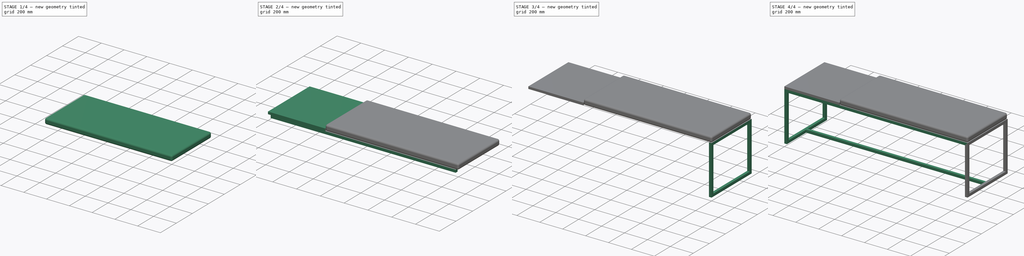
[diagram: build sequence overview — one tinted view per stage of 4, left to right]
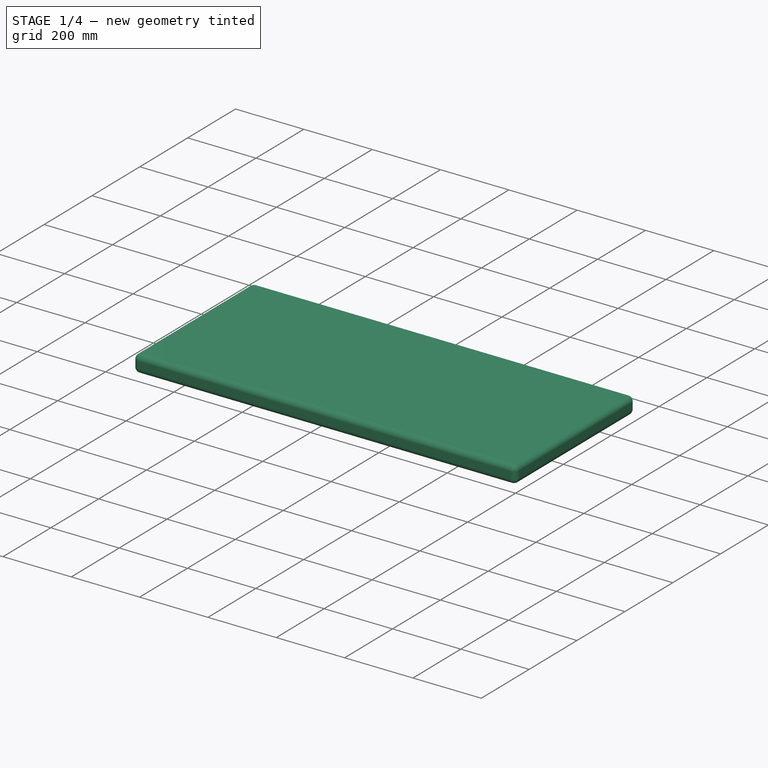
[diagram: stage 1 of 4 — iso view after this stage's code; geometry added in this stage tinted green]
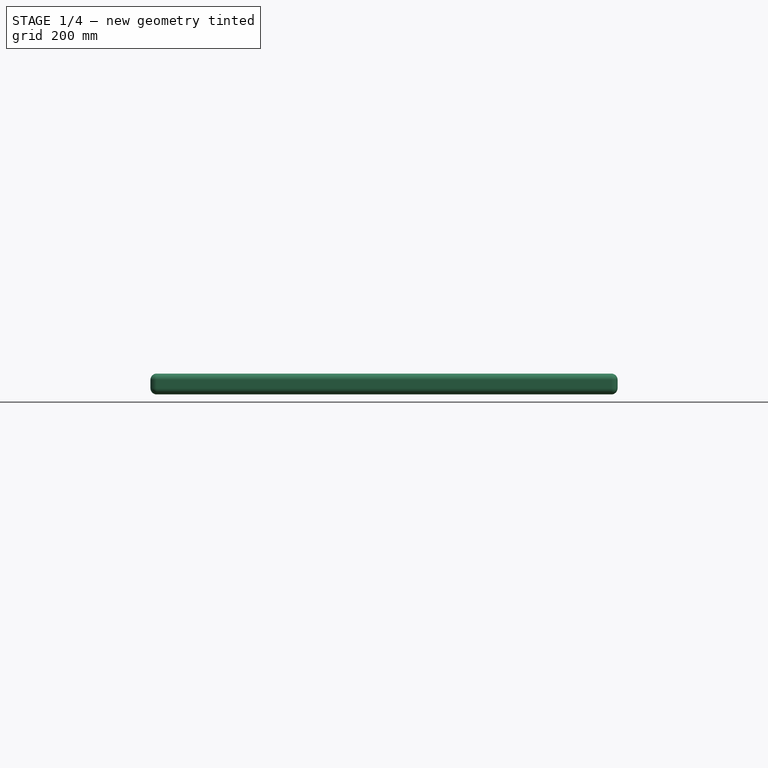
[diagram: stage 1 of 4 — front view after this stage's code; geometry added in this stage tinted green]
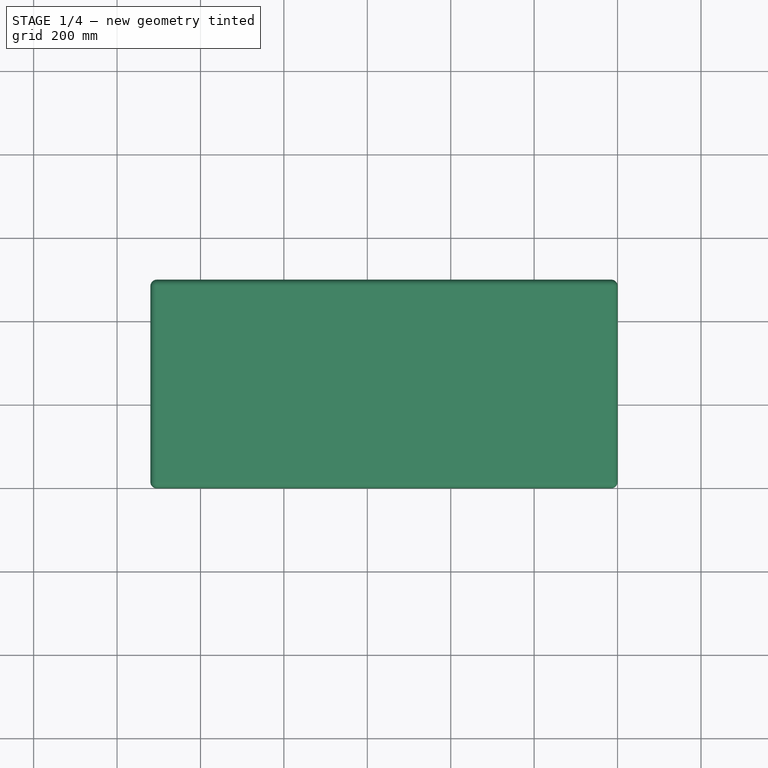
[diagram: stage 1 of 4 — top view after this stage's code; geometry added in this stage tinted green]
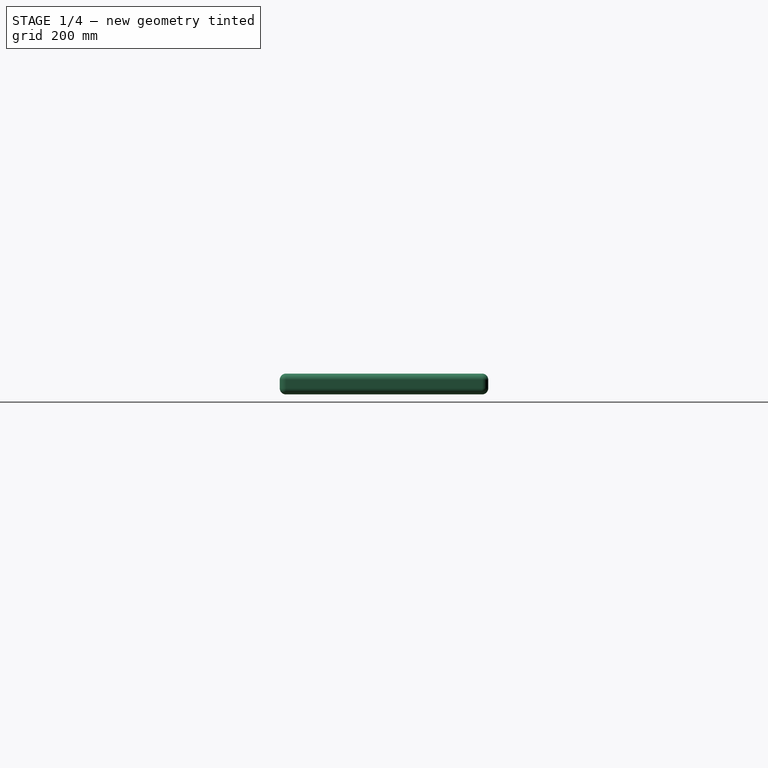
[diagram: stage 1 of 4 — right view after this stage's code; geometry added in this stage tinted green]
FCSTD DOCUMENT  (FreeCAD 0.21R33668 +26 (Git))
Label: Reacamier
License: All rights reserved
objects: Sketcher::SketchObject×4, Part::FeaturePython×4, Part::Extrusion×4, Part::MultiFuse×1, Part::Fillet×1, Part::Compound×1
note: 15 computed .brp shape members not serialized (recipe doc carries the construction recipe); baked Part::Feature solids carry a one-line shape summary decoded from their .brp

FEATURE [Sketcher::SketchObject] Sketch003
  FullyConstrained = true
  expr: Constraints[10] = <<Propriedades recamier>>.Largura
  expr: Constraints[9] = <<Propriedades recamier>>.Comprimento * 0.7
  sketch-geometry (4):
    g0: LineSegment StartX=0 StartY=0 StartZ=0 EndX=1120 EndY=0 EndZ=0
    g1: LineSegment StartX=1120 StartY=0 StartZ=0 EndX=1120 EndY=500 EndZ=0
    g2: LineSegment StartX=1120 StartY=500 StartZ=0 EndX=0 EndY=500 EndZ=0
    g3: LineSegment StartX=0 StartY=500 StartZ=0 EndX=0 EndY=0 EndZ=0
  constraints (11):
    c: Coincident(g0,g1)
    c: Coincident(g1,g2)
    c: Coincident(g2,g3)
    c: Coincident(g3,g0)
    c: Horizontal(g0)
    c: Horizontal(g2)
    c: Vertical(g1)
    c: Vertical(g3)
    c: Coincident(g0,g-1)
    c: DistanceX(g2,g2) = 1120
    c: DistanceY(g1,g1) = 500
FEATURE [Part::Extrusion] Extrude003  label="Extrude006"
  Base = -> Sketch003
  Dir = (0,0,1)
  DirMode = 2
  FaceMakerClass = Part::FaceMakerBullseye
  LengthFwd = 50
  LengthRev = 0
  Solid = true
  Symmetric = false
FEATURE [Part::Fillet] Fillet
  Base = -> Extrude003
  Edges = 12 edges r=15: [Edge1,Edge2,Edge3,Edge4,Edge5,Edge6,Edge7,Edge8,Edge9,Edge10,Edge11,Edge12]
  Placement = pos=(480,0,430) rot=(0,0,1;0rad)
  expr: .Placement.Base.x = <<Propriedades recamier>>.Comprimento * 0.3
  expr: .Placement.Base.z = <<Propriedades recamier>>.Altura - 2 cm
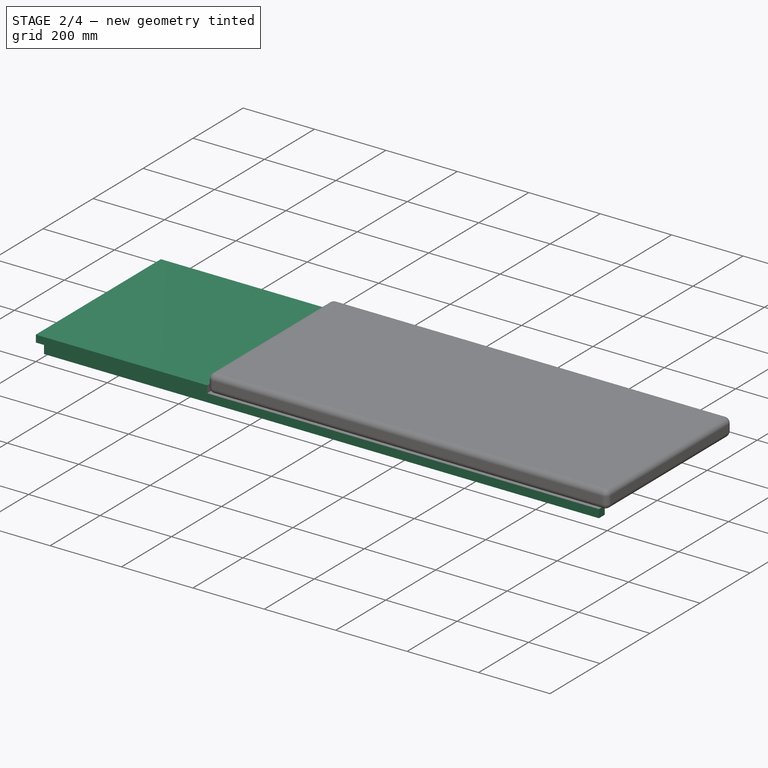
[diagram: stage 2 of 4 — iso view after this stage's code; geometry added in this stage tinted green]
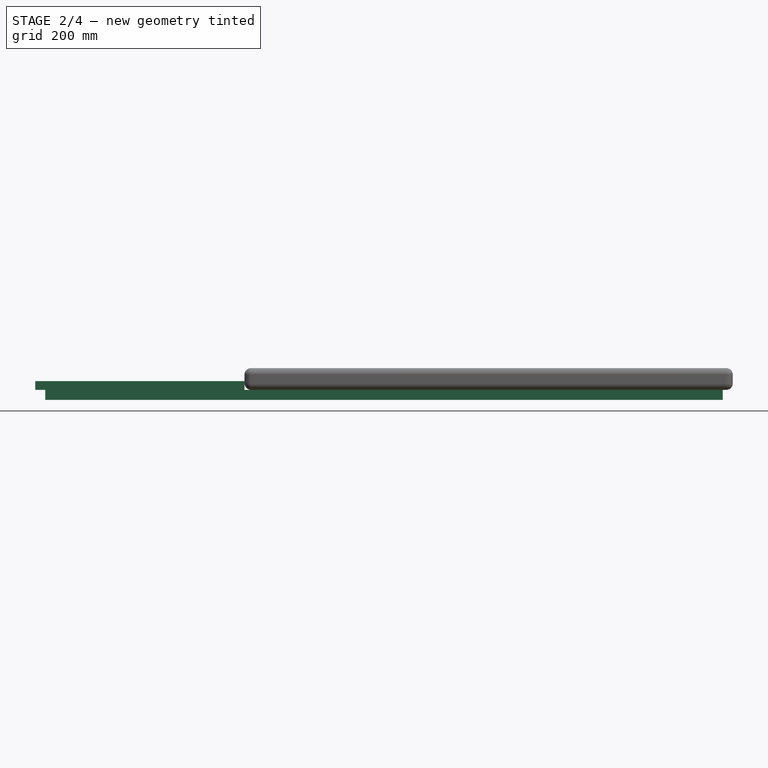
[diagram: stage 2 of 4 — front view after this stage's code; geometry added in this stage tinted green]
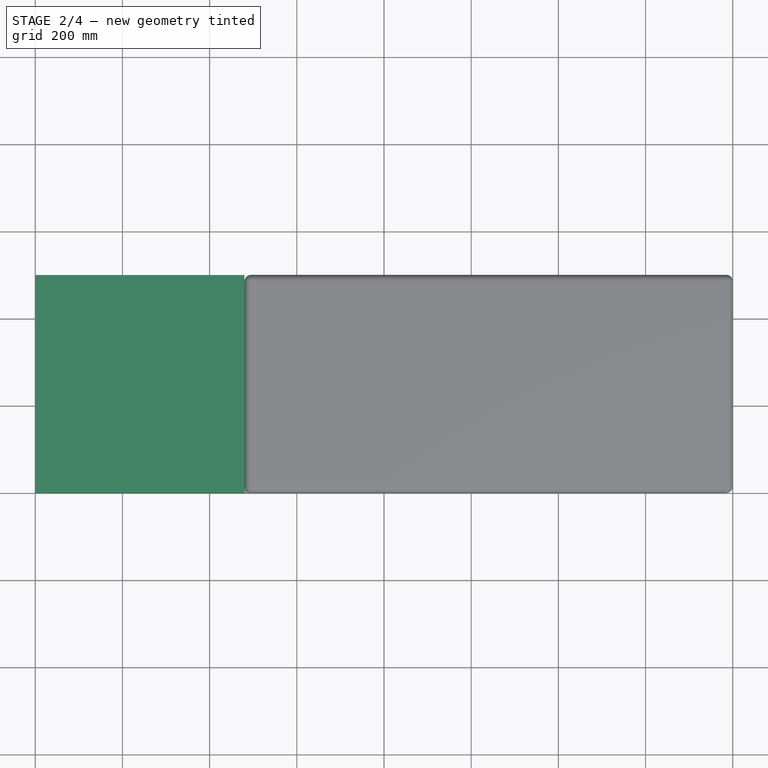
[diagram: stage 2 of 4 — top view after this stage's code; geometry added in this stage tinted green]
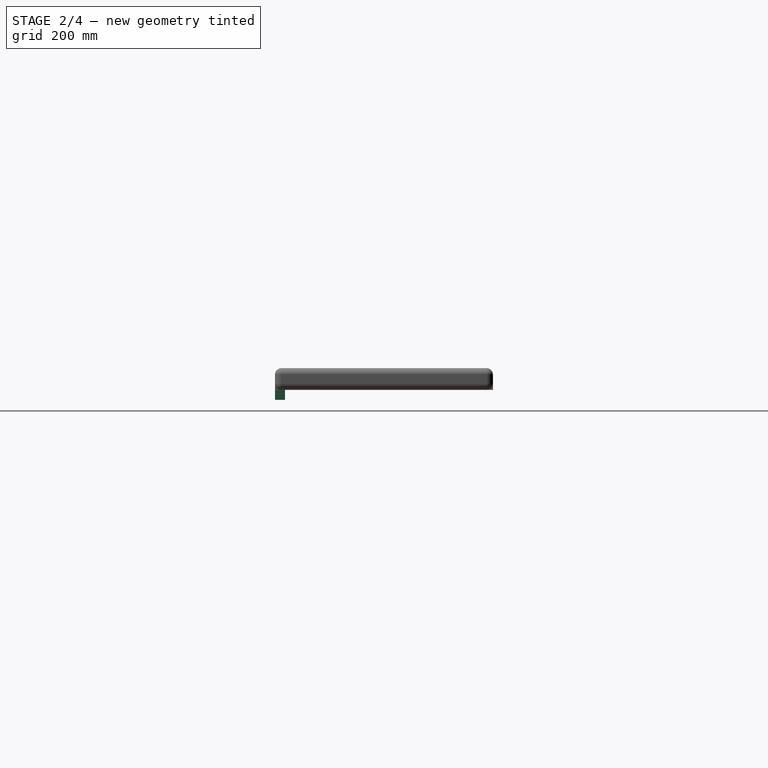
[diagram: stage 2 of 4 — right view after this stage's code; geometry added in this stage tinted green]
FEATURE [Sketcher::SketchObject] Sketch001
  FullyConstrained = true
  Placement = pos=(0,0,0) rot=(0.57735,0.57735,0.57735;2.0944rad)
  expr: Constraints[10] = <<Propriedades recamier>>.EspessuraFrame
  sketch-geometry (4):
    g0: LineSegment StartX=0 StartY=0 StartZ=0 EndX=23 EndY=0 EndZ=0
    g1: LineSegment StartX=23 StartY=0 StartZ=0 EndX=23 EndY=23 EndZ=0
    g2: LineSegment StartX=23 StartY=23 StartZ=0 EndX=0 EndY=23 EndZ=0
    g3: LineSegment StartX=0 StartY=23 StartZ=0 EndX=0 EndY=0 EndZ=0
  constraints (11):
    c: Coincident(g0,g1)
    c: Coincident(g1,g2)
    c: Coincident(g2,g3)
    c: Coincident(g3,g0)
    c: Horizontal(g0)
    c: Horizontal(g2)
    c: Vertical(g1)
    c: Vertical(g3)
    c: Coincident(g0,g-1)
    c: Equal(g2,g1)
    c: DistanceY(g1,g1) = 23
FEATURE [Part::Extrusion] Extrude001  label="Extrude002"
  Base = -> Sketch001
  Dir = (1,0,0)
  DirMode = 2
  FaceMakerClass = Part::FaceMakerBullseye
  LengthFwd = 1554
  LengthRev = 0
  Placement = pos=(23,238.5,0) rot=(0,0,1;0rad)
  Solid = true
  Symmetric = false
  expr: .Placement.Base.x = <<Propriedades recamier>>.EspessuraFrame
  expr: .Placement.Base.y = (<<Propriedades recamier>>.Largura - <<Propriedades recamier>>.EspessuraFrame) / 2
  expr: LengthFwd = <<Propriedades recamier>>.Comprimento - 2 * <<Propriedades recamier>>.EspessuraFrame
FEATURE [Part::FeaturePython] Clone001  label="Extrude003"  # Draft clone (typed FeaturePython)
  AttacherType = Attacher::AttachEngine3D
  Fuse = false
  Objects = -> [Extrude001]
  Placement = pos=(23,0,407) rot=(0,0,1;0rad)
  Scale = (1,1,1)
  expr: .Placement.Base.x = <<Propriedades recamier>>.EspessuraFrame
  expr: .Placement.Base.z = <<Propriedades recamier>>.Altura - 2 cm - <<Propriedades recamier>>.EspessuraFrame
FEATURE [Sketcher::SketchObject] Sketch002
  FullyConstrained = true
  expr: Constraints[10] = <<Propriedades recamier>>.Comprimento * 0.3
  expr: Constraints[9] = <<Propriedades recamier>>.Largura
  sketch-geometry (4):
    g0: LineSegment StartX=0 StartY=0 StartZ=0 EndX=480 EndY=0 EndZ=0
    g1: LineSegment StartX=480 StartY=0 StartZ=0 EndX=480 EndY=500 EndZ=0
    g2: LineSegment StartX=480 StartY=500 StartZ=0 EndX=0 EndY=500 EndZ=0
    g3: LineSegment StartX=0 StartY=500 StartZ=0 EndX=0 EndY=0 EndZ=0
  constraints (11):
    c: Coincident(g0,g1)
    c: Coincident(g1,g2)
    c: Coincident(g2,g3)
    c: Coincident(g3,g0)
    c: Horizontal(g0)
    c: Horizontal(g2)
    c: Vertical(g1)
    c: Vertical(g3)
    c: Coincident(g0,g-1)
    c: DistanceY(g1,g1) = 500
    c: DistanceX(g2,g2) = 480
FEATURE [Part::Extrusion] Extrude002  label="Extrude005"
  Base = -> Sketch002
  Dir = (0,0,1)
  DirMode = 2
  FaceMakerClass = Part::FaceMakerBullseye
  LengthFwd = 20
  LengthRev = 0
  Placement = pos=(0,0,430) rot=(0,0,1;0rad)
  Solid = true
  Symmetric = false
  expr: .Placement.Base.z = <<Propriedades recamier>>.Altura - 2 cm
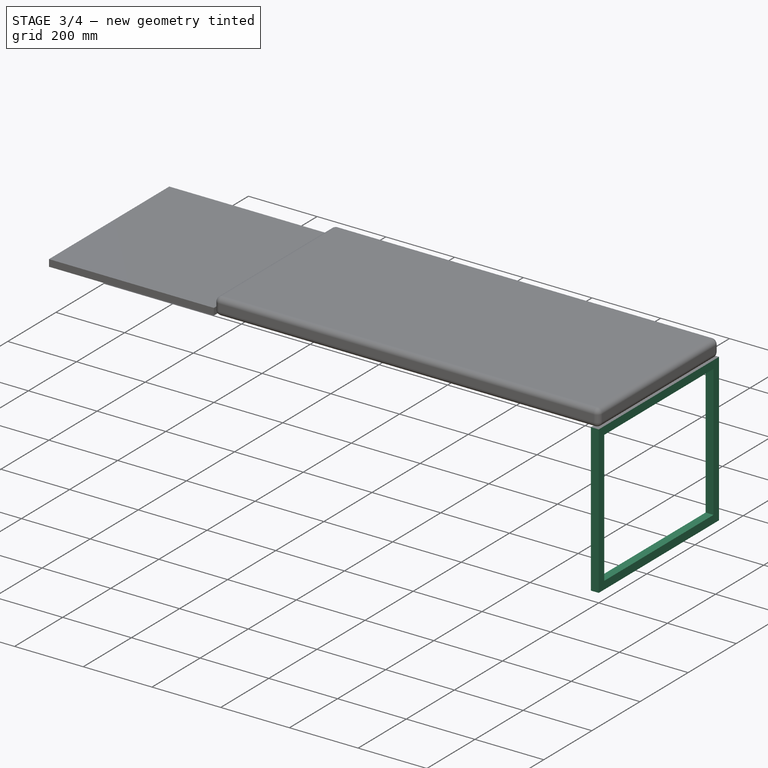
[diagram: stage 3 of 4 — iso view after this stage's code; geometry added in this stage tinted green]
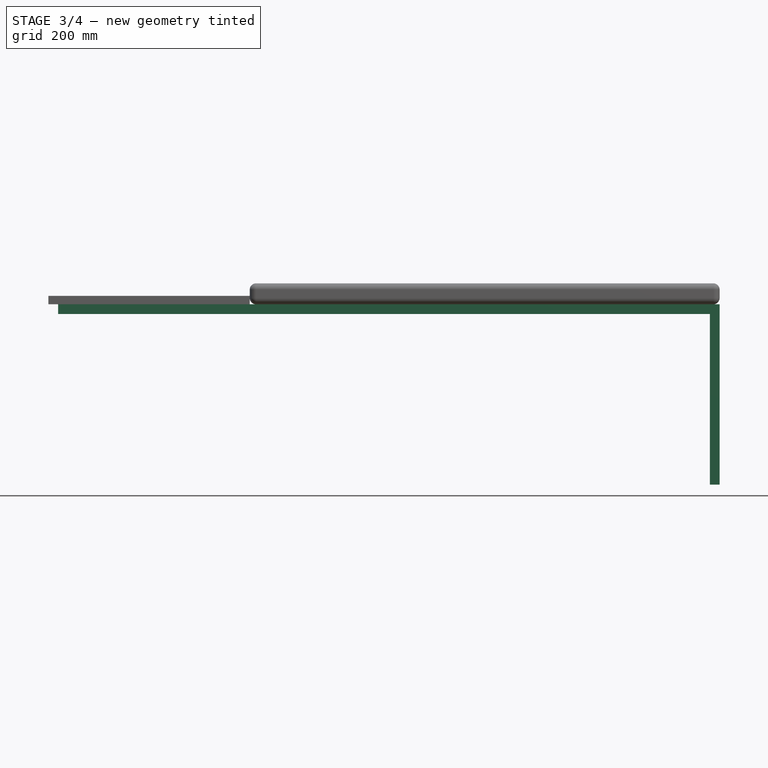
[diagram: stage 3 of 4 — front view after this stage's code; geometry added in this stage tinted green]
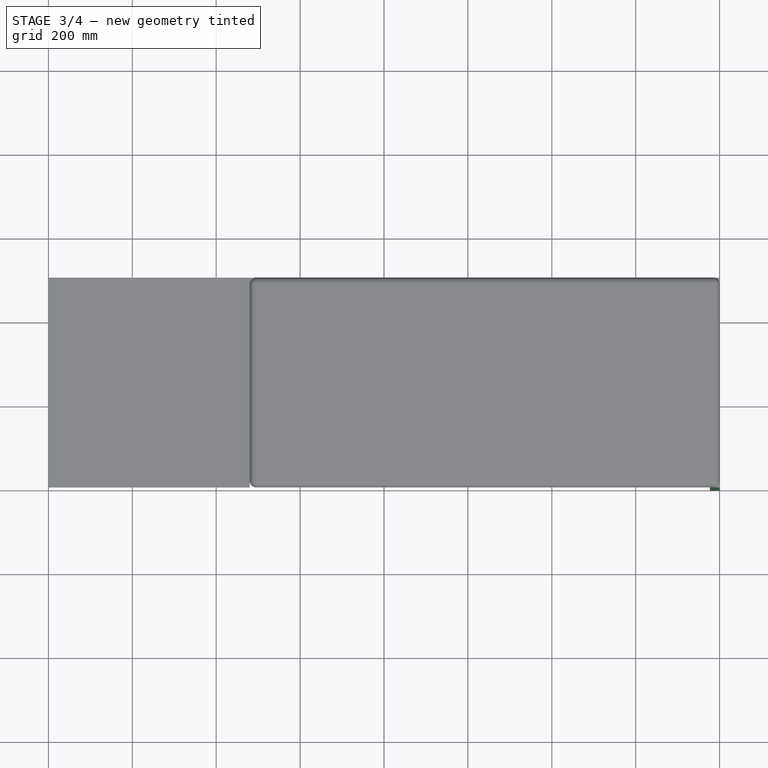
[diagram: stage 3 of 4 — top view after this stage's code; geometry added in this stage tinted green]
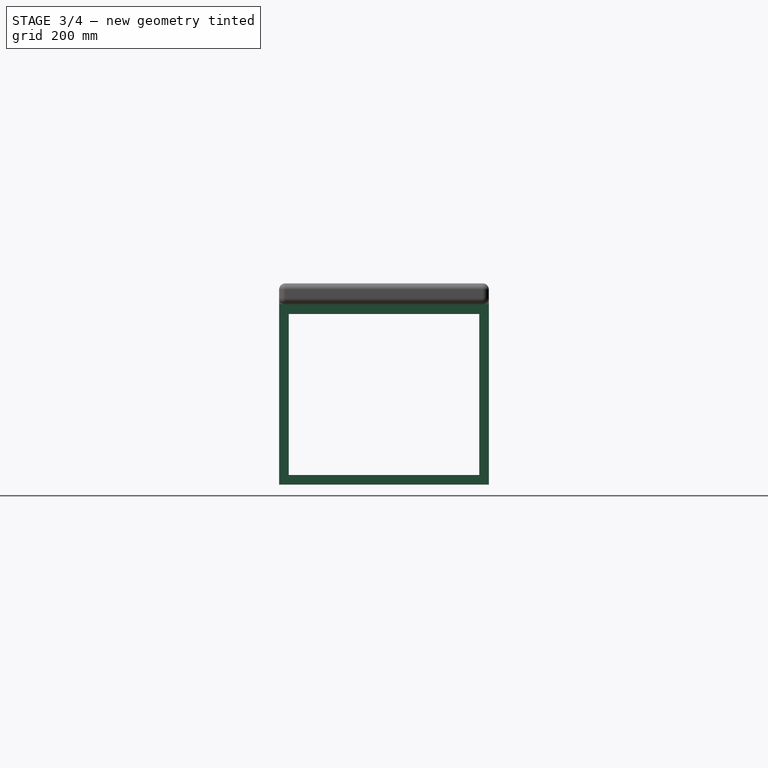
[diagram: stage 3 of 4 — right view after this stage's code; geometry added in this stage tinted green]
FEATURE [Sketcher::SketchObject] Sketch
  FullyConstrained = true
  Placement = pos=(0,0,0) rot=(0.57735,0.57735,0.57735;2.0944rad)
  expr: Constraints[10] = <<Propriedades recamier>>.Largura
  expr: Constraints[19] = <<Propriedades recamier>>.EspessuraFrame
  expr: Constraints[20] = <<Propriedades recamier>>.EspessuraFrame
  expr: Constraints[21] = <<Propriedades recamier>>.EspessuraFrame
  expr: Constraints[22] = <<Propriedades recamier>>.EspessuraFrame
  expr: Constraints[9] = <<Propriedades recamier>>.Altura - 2 cm
  sketch-geometry (8):
    g0: LineSegment StartX=0 StartY=0 StartZ=0 EndX=500 EndY=0 EndZ=0
    g1: LineSegment StartX=500 StartY=0 StartZ=0 EndX=500 EndY=430 EndZ=0
    g2: LineSegment StartX=500 StartY=430 StartZ=0 EndX=0 EndY=430 EndZ=0
    g3: LineSegment StartX=0 StartY=430 StartZ=0 EndX=0 EndY=0 EndZ=0
    g4: LineSegment StartX=23 StartY=407 StartZ=0 EndX=477 EndY=407 EndZ=0
    g5: LineSegment StartX=477 StartY=407 StartZ=0 EndX=477 EndY=23 EndZ=0
    g6: LineSegment StartX=477 StartY=23 StartZ=0 EndX=23 EndY=23 EndZ=0
    g7: LineSegment StartX=23 StartY=23 StartZ=0 EndX=23 EndY=407 EndZ=0
  constraints (23):
    c: Coincident(g0,g1)
    c: Coincident(g1,g2)
    c: Coincident(g2,g3)
    c: Coincident(g3,g0)
    c: Horizontal(g0)
    c: Horizontal(g2)
    c: Vertical(g1)
    c: Vertical(g3)
    c: Coincident(g0,g-1)
    c: DistanceY(g1,g1) = 430
    c: DistanceX(g2,g2) = 500
    c: Coincident(g4,g5)
    c: Coincident(g5,g6)
    c: Coincident(g6,g7)
    c: Coincident(g7,g4)
    c: Horizontal(g4)
    c: Horizontal(g6)
    c: Vertical(g5)
    c: Vertical(g7)
    c: DistanceY(g0,g5) = 23
    c: DistanceY(g4,g2) = 23
    c: DistanceX(g2,g4) = 23
    c: DistanceX(g5,g0) = 23
FEATURE [Part::FeaturePython] Point  label="Propriedades recamier"  # WARN: FeaturePython — macro-defined, semantics opaque (R4)
  Altura = 450
  Comprimento = 1600
  EspessuraFrame = 23
  Largura = 500
  X = 0
  Y = 0
  Z = 0
FEATURE [Part::Extrusion] Extrude
  Base = -> Sketch
  Dir = (1,0,0)
  DirMode = 2
  FaceMakerClass = Part::FaceMakerBullseye
  LengthFwd = 23
  LengthRev = 0
  Solid = true
  Symmetric = false
  expr: LengthFwd = <<Propriedades recamier>>.EspessuraFrame
FEATURE [Part::FeaturePython] Clone  label="Extrude001"  # Draft clone (typed FeaturePython)
  AttacherType = Attacher::AttachEngine3D
  Fuse = false
  Objects = -> [Extrude]
  Placement = pos=(1577,0,0) rot=(0,0,1;0rad)
  Scale = (1,1,1)
  expr: .Placement.Base.x = <<Propriedades recamier>>.Comprimento - <<Propriedades recamier>>.EspessuraFrame
FEATURE [Part::FeaturePython] Clone002  label="Extrude004"  # Draft clone (typed FeaturePython)
  AttacherType = Attacher::AttachEngine3D
  Fuse = false
  Objects = -> [Clone001]
  Placement = pos=(23,477,407) rot=(0,0,1;0rad)
  Scale = (1,1,1)
  expr: .Placement.Base.x = <<Propriedades recamier>>.EspessuraFrame
  expr: .Placement.Base.y = <<Propriedades recamier>>.Largura - <<Propriedades recamier>>.EspessuraFrame
  expr: .Placement.Base.z = <<Propriedades recamier>>.Altura - 2 cm - <<Propriedades recamier>>.EspessuraFrame
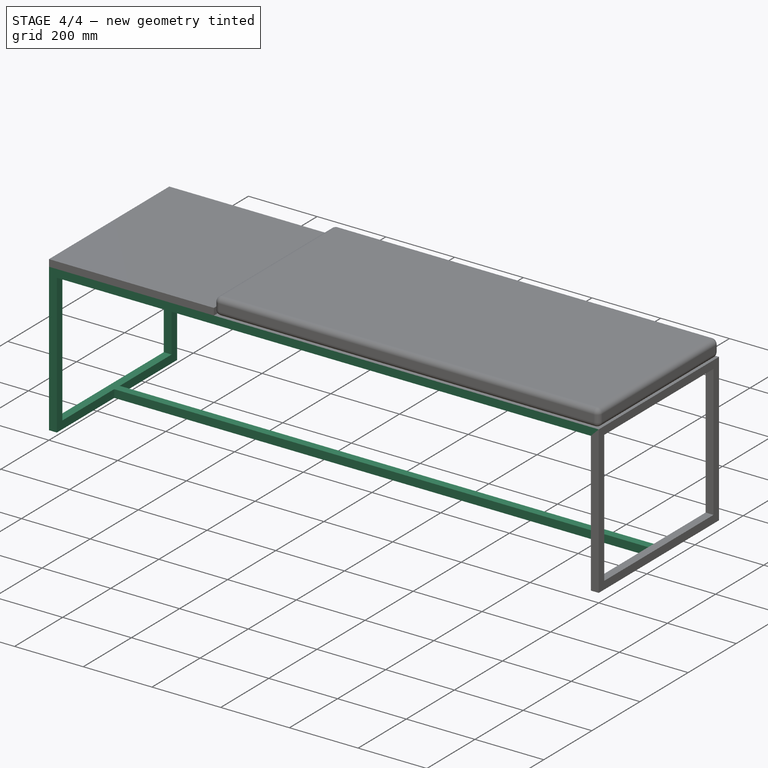
[diagram: stage 4 of 4 — iso view after this stage's code; geometry added in this stage tinted green]
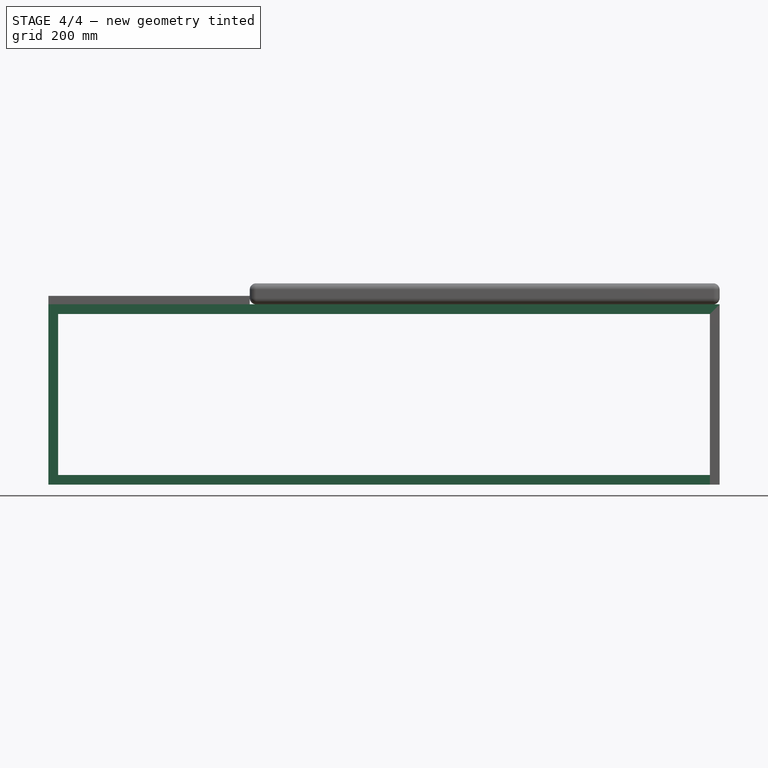
[diagram: stage 4 of 4 — front view after this stage's code; geometry added in this stage tinted green]
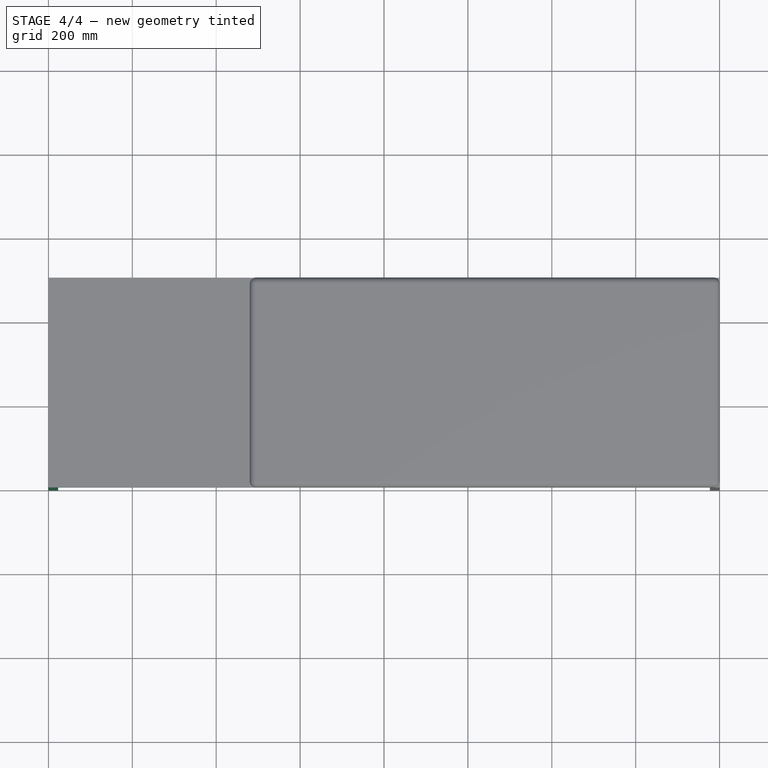
[diagram: stage 4 of 4 — top view after this stage's code; geometry added in this stage tinted green]
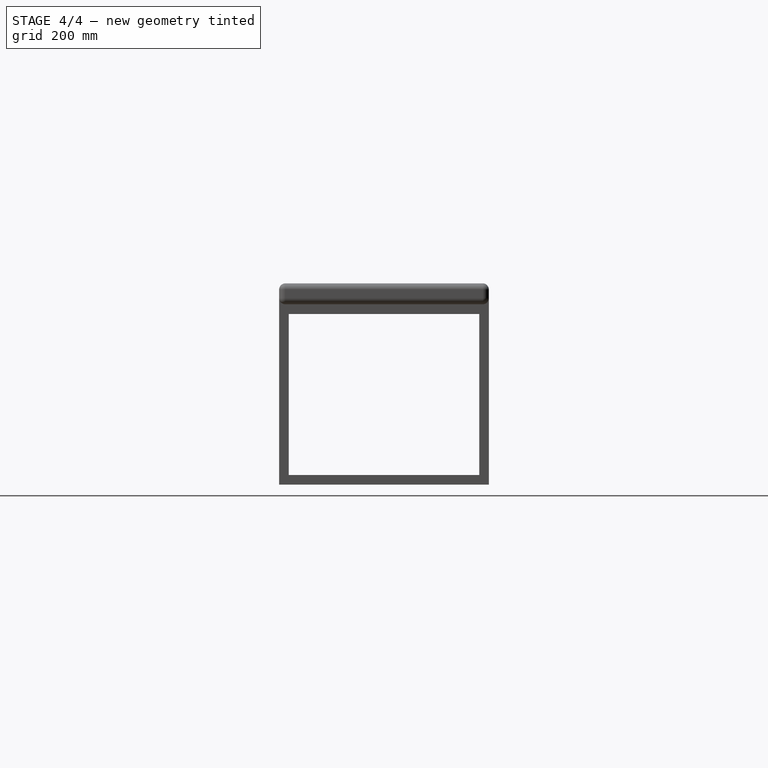
[diagram: stage 4 of 4 — right view after this stage's code; geometry added in this stage tinted green]
FEATURE [Part::MultiFuse] Fusion
  Refine = true
  Shapes = -> [Extrude,Clone,Extrude001,Clone001,Clone002]
FEATURE [Part::Compound] Compound  label="Recamier"
  Links = -> [Point,Fusion,Extrude002,Fillet]
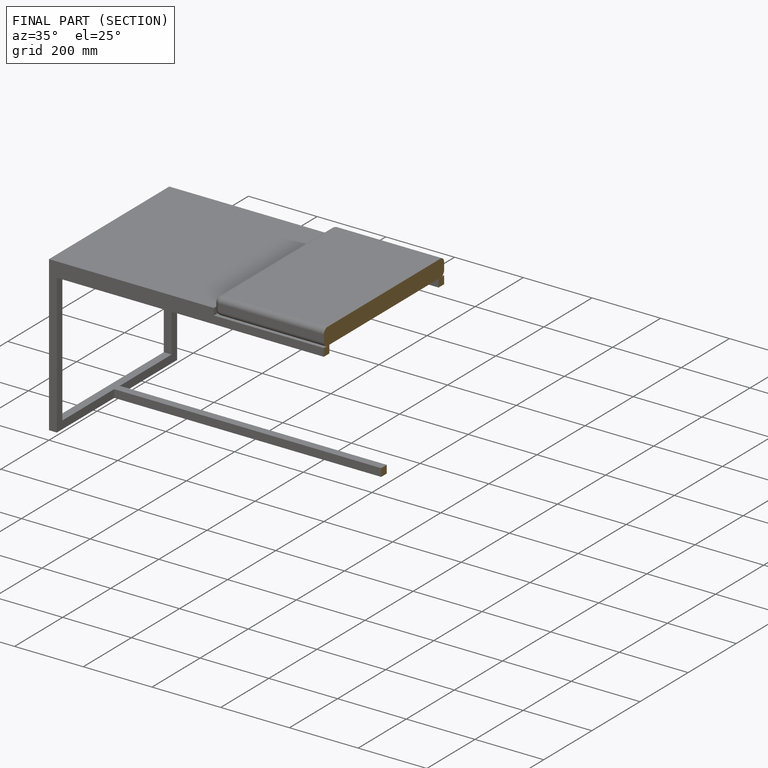
[diagram: finished part — half-section view (interior)]
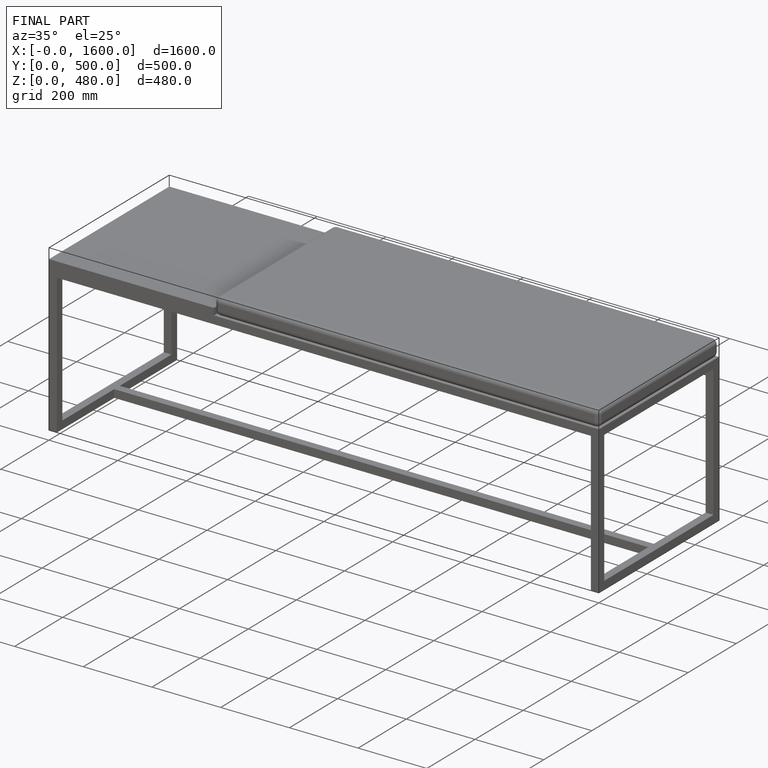
[diagram: finished part — iso view with bounding-box wireframe]
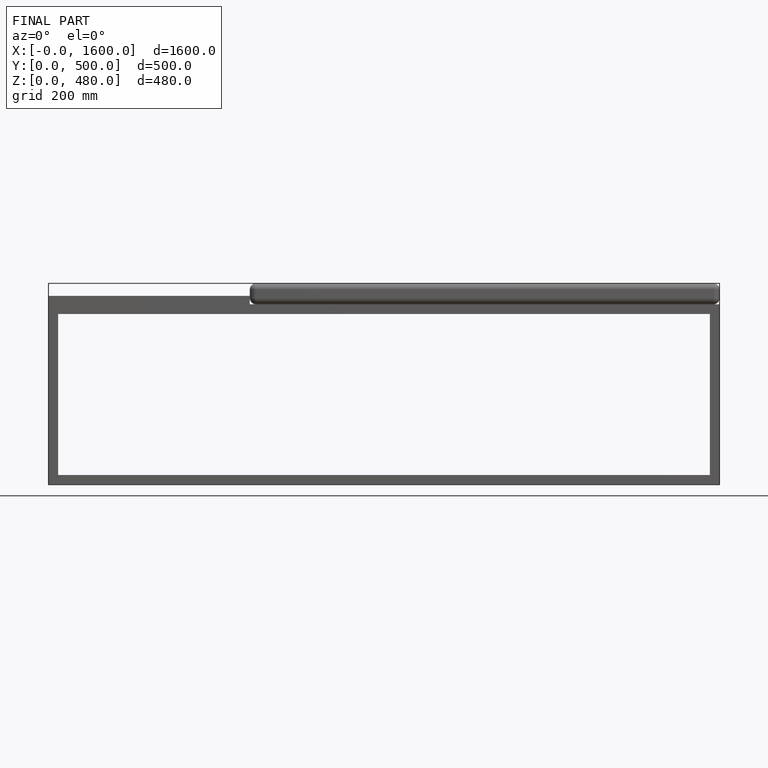
[diagram: finished part — front view with bounding-box wireframe]
